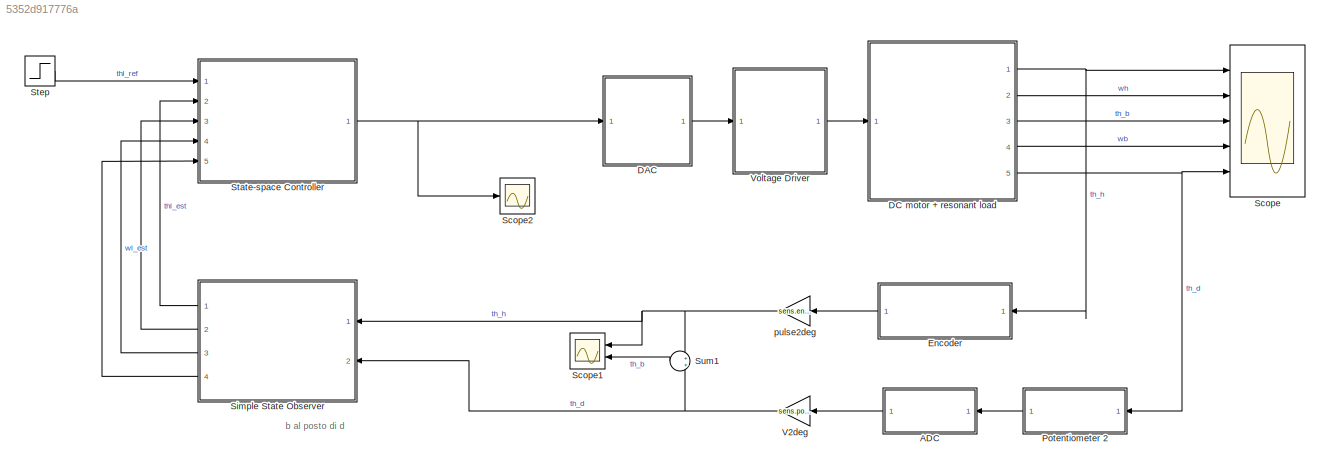
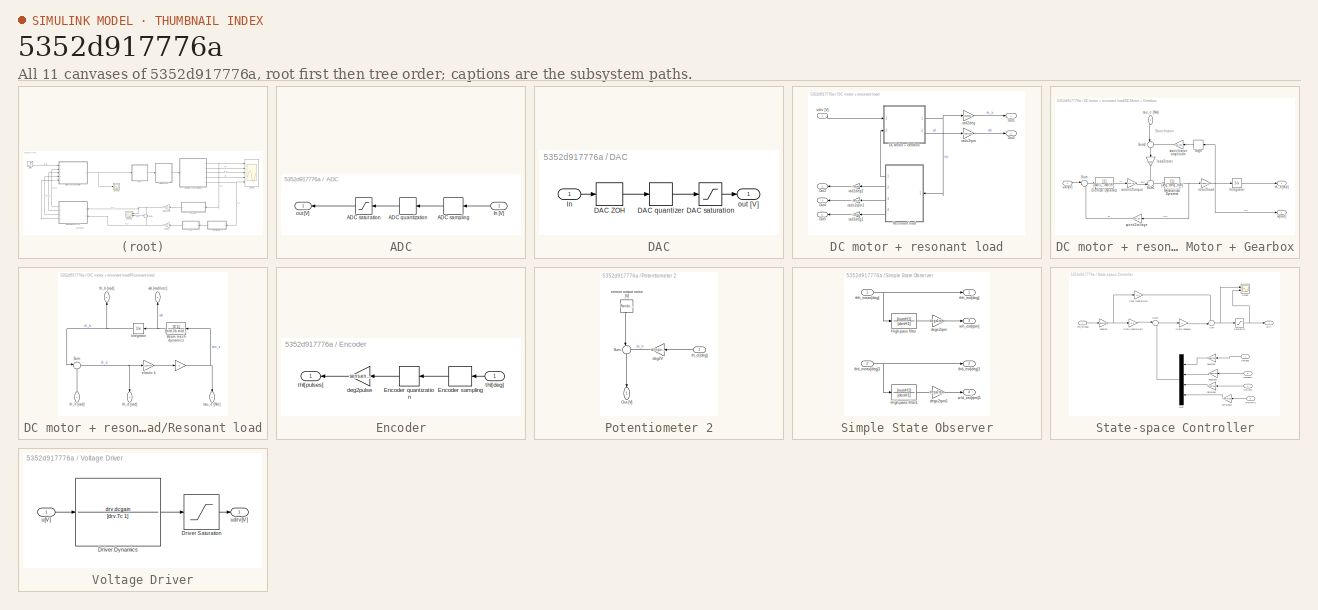
[diagram: thumbnail index - all 11 canvases of the model, root first then tree order]
MODEL slx_5352d917776a
KIND model
CONFIG AbsTol = auto
CONFIG EnableMultiTasking = off
CONFIG FixedStep = auto
CONFIG MaxStep = auto
CONFIG MinStep = auto
CONFIG RelTol = 1e-3
CONFIG SampleTimeConstraint = Unconstrained
CONFIG SolverName = ode45
CONFIG StartTime = 0.0
CONFIG StopTime = 5
BLOCK [SubSystem] ADC
  Ports = [1, 1]
  RequestExecContextInheritance = off
BLOCK [Quantizer] ADC/ADC quantization
  QuantizationInterval = daq.dac.q
BLOCK [ZeroOrderHold] ADC/ADC sampling
  SampleTime = 0.001
BLOCK [Saturate] ADC/ADC saturation
  LowerLimit = -daq.dac.fs
  UpperLimit = daq.dac.fs
BLOCK [Inport] ADC/In [V]
BLOCK [Outport] ADC/out [V]
BLOCK [SubSystem] DAC
  Ports = [1, 1]
  RequestExecContextInheritance = off
BLOCK [ZeroOrderHold] DAC/DAC ZOH
  SampleTime = 0.001
BLOCK [Quantizer] DAC/DAC quantizer
  QuantizationInterval = daq.dac.q
BLOCK [Saturate] DAC/DAC saturation
  LowerLimit = -daq.dac.fs
  UpperLimit = daq.dac.fs
BLOCK [Inport] DAC/In
BLOCK [Outport] DAC/out [V]
BLOCK [SubSystem] DC motor + resonant load
  Ports = [1, 5]
  RequestExecContextInheritance = off
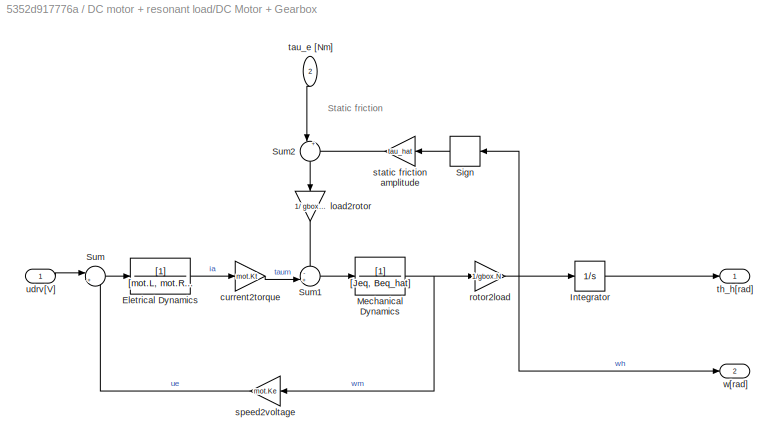
BLOCK [SubSystem] DC motor + resonant load/DC Motor + Gearbox
  Ports = [2, 2]
  RequestExecContextInheritance = off
BLOCK [TransferFcn] DC motor + resonant load/DC Motor + Gearbox/Eletrical Dynamics
  Denominator = [mot.L, mot.R+sens.curr.Rs]
BLOCK [Integrator] DC motor + resonant load/DC Motor + Gearbox/Integrator
  Ports = [1, 1]
BLOCK [TransferFcn] DC motor + resonant load/DC Motor + Gearbox/Mechanical Dynamics
  Denominator = [Jeq, Beq_hat]
BLOCK [Signum] DC motor + resonant load/DC Motor + Gearbox/Sign
  ZeroCross = off
BLOCK [Sum] DC motor + resonant load/DC Motor + Gearbox/Sum
  Inputs = |+-
  Ports = [2, 1]
BLOCK [Sum] DC motor + resonant load/DC Motor + Gearbox/Sum1
  Inputs = -+|
  Ports = [2, 1]
BLOCK [Sum] DC motor + resonant load/DC Motor + Gearbox/Sum2
  Inputs = |++
  NameLocation = right
  Ports = [2, 1]
BLOCK [Gain] DC motor + resonant load/DC Motor + Gearbox/current2torque
  Gain = mot.Kt
BLOCK [Gain] DC motor + resonant load/DC Motor + Gearbox/load2rotor
  Gain = 1/ gbox.N
  NameLocation = left
BLOCK [Gain] DC motor + resonant load/DC Motor + Gearbox/rotor2load
  Gain = 1/gbox.N
BLOCK [Gain] DC motor + resonant load/DC Motor + Gearbox/speed2voltage
  Gain = mot.Ke
BLOCK [Gain] DC motor + resonant load/DC Motor + Gearbox/static friction amplitude
  Gain = tau_hat
BLOCK [Inport] DC motor + resonant load/DC Motor + Gearbox/tau_e [Nm]
  NameLocation = left
  Port = 2
BLOCK [Outport] DC motor + resonant load/DC Motor + Gearbox/th_h[rad]
  VectorParamsAs1DForOutWhenUnconnected = off
BLOCK [Inport] DC motor + resonant load/DC Motor + Gearbox/udrv[V]
BLOCK [Outport] DC motor + resonant load/DC Motor + Gearbox/w[rad]
  Port = 2
  VectorParamsAs1DForOutWhenUnconnected = off
BLOCK [Outport] DC motor + resonant load/Out1
BLOCK [Outport] DC motor + resonant load/Out2
  Port = 2
BLOCK [Outport] DC motor + resonant load/Out3
  Port = 3
BLOCK [Outport] DC motor + resonant load/Out4
  Port = 4
BLOCK [Outport] DC motor + resonant load/Out5
  Port = 5
BLOCK [SubSystem] DC motor + resonant load/Resonant load
  Ports = [1, 4]
  RequestExecContextInheritance = off
BLOCK [Gain] DC motor + resonant load/Resonant load/.
  Gain = -1
BLOCK [TransferFcn] DC motor + resonant load/Resonant load/Beam mech dynamics
  Denominator = [mld.Jb mld.Bb]
  Numerator = [0 1]
BLOCK [Integrator] DC motor + resonant load/Resonant load/Integrator
  Ports = [1, 1]
BLOCK [Sum] DC motor + resonant load/Resonant load/Sum
  Inputs = |+-
  NameLocation = top
  Ports = [2, 1]
BLOCK [Gain] DC motor + resonant load/Resonant load/elastic k
  Gain = k_spring
BLOCK [Outport] DC motor + resonant load/Resonant load/tau_e [Nm]
  NameLocation = left
BLOCK [Outport] DC motor + resonant load/Resonant load/th_b [rad]
  NameLocation = right
  Port = 2
BLOCK [Outport] DC motor + resonant load/Resonant load/th_d [rad]
  NameLocation = left
  Port = 4
BLOCK [Inport] DC motor + resonant load/Resonant load/th_h [rad]
  NameLocation = right
BLOCK [Outport] DC motor + resonant load/Resonant load/wb [rad//sec]
  NameLocation = right
  Port = 3
BLOCK [Gain] DC motor + resonant load/rad2deg
  Gain = rad2deg
BLOCK [Gain] DC motor + resonant load/rad2deg1
  Gain = rad2deg
BLOCK [Gain] DC motor + resonant load/rad2deg2
  Gain = rad2deg
BLOCK [Gain] DC motor + resonant load/rads2rpm 
  Gain = rads2rpm
BLOCK [Gain] DC motor + resonant load/rads2rpm1 
  Gain = rads2rpm
BLOCK [Inport] DC motor + resonant load/udrv [V]
BLOCK [SubSystem] Encoder
  Ports = [1, 1]
  RequestExecContextInheritance = off
BLOCK [Quantizer] Encoder/Encoder quantization
  QuantizationInterval = sens.enc.pulse2deg
BLOCK [ZeroOrderHold] Encoder/Encoder sampling
  SampleTime = -1
BLOCK [Gain] Encoder/deg2pulse
  Gain = sens.enc.deg2pulse
BLOCK [Inport] Encoder/thl[deg]
BLOCK [Outport] Encoder/thl[pulses]
BLOCK [SubSystem] Potentiometer 2
  Ports = [1, 1]
  RequestExecContextInheritance = off
BLOCK [Outport] Potentiometer 2/Out [V]
  NameLocation = right
BLOCK [Sum] Potentiometer 2/Sum
  Inputs = |++
  NameLocation = left
  Ports = [2, 1]
BLOCK [Gain] Potentiometer 2/deg2V
  Gain = sens.pot2.deg2V
BLOCK [RandomNumber] Potentiometer 2/sensor output noise [V] 
  NameLocation = right
  SampleTime = 0.1
  Variance = 3.5e-7
BLOCK [Inport] Potentiometer 2/th_d [deg]
BLOCK [Scope] Scope
  Floating = off
  NumInputPorts = 5
  Ports = [5]
  ScopeSpecificationString = Simulink.scopes.TimeScopeBlockCfg('CurrentConfiguration', extmgr.ConfigurationSet(extmgr.Configuration('Core','General UI',true),extmgr.Configuration('Core','Source UI',true),extmgr.Configuration('Sources','WiredSimulink',true,'DataLoggingVariableName','MotorData','DataLogging',true,'DataLoggingSaveFormat','StructureWithTime'),extmgr.Configuration('Visuals','Time Domain',true,'SerializedDisplays',...<+4798ch>
BLOCK [Scope] Scope1
  Floating = off
  NumInputPorts = 2
  Ports = [2]
  ScopeSpecificationString = Simulink.scopes.TimeScopeBlockCfg('CurrentConfiguration', extmgr.ConfigurationSet(extmgr.Configuration('Core','General UI',true),extmgr.Configuration('Core','Source UI',true),extmgr.Configuration('Sources','WiredSimulink',true),extmgr.Configuration('Visuals','Time Domain',true,'SerializedDisplays',{struct('MinYLimReal','-2.92139','MaxYLimReal','24.83989','YLabelReal','','MinYLimMag','0.00000','Max...<+1335ch>
BLOCK [Scope] Scope2
  Floating = off
  NumInputPorts = 1
  Ports = [1]
  ScopeSpecificationString = Simulink.scopes.TimeScopeBlockCfg('CurrentConfiguration', extmgr.ConfigurationSet(extmgr.Configuration('Core','General UI',true),extmgr.Configuration('Core','Source UI',true),extmgr.Configuration('Sources','WiredSimulink',true,'DataLoggingVariableName','ScopeData1'),extmgr.Configuration('Visuals','Time Domain',true,'SerializedDisplays',{struct('MinYLimReal','-0.41633','MaxYLimReal','1.64636','YLab...<+1406ch>
BLOCK [SubSystem] Simple State Observer
  Ports = [2, 4]
  RequestExecContextInheritance = off
BLOCK [TransferFcn] Simple State Observer/High-pass filter
  Denominator = [denH1]
  Numerator = [numH1]
BLOCK [TransferFcn] Simple State Observer/High-pass filter1
  Denominator = [denH1]
  Numerator = [numH1]
BLOCK [Gain] Simple State Observer/degs2rpm
  Gain = degs2rpm
BLOCK [Gain] Simple State Observer/degs2rpm1
  Gain = degs2rpm
BLOCK [Outport] Simple State Observer/thd_est[deg]1
  Port = 2
BLOCK [Inport] Simple State Observer/thd_meas[deg]1
  Port = 2
BLOCK [Outport] Simple State Observer/thh_est[deg]
BLOCK [Inport] Simple State Observer/thh_meas[deg]
BLOCK [Outport] Simple State Observer/wh_est[rpm]
  Port = 3
BLOCK [Outport] Simple State Observer/wld_est[rpm]1
  Port = 4
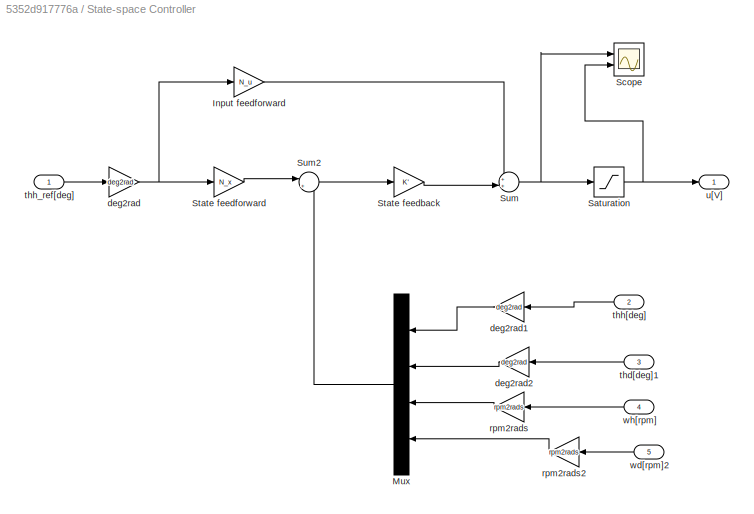
BLOCK [SubSystem] State-space Controller
  Ports = [5, 1]
  RequestExecContextInheritance = off
BLOCK [Gain] State-space Controller/Input feedforward
  Gain = N_u
BLOCK [Mux] State-space Controller/Mux
  DisplayOption = bar
  Ports = [4, 1]
BLOCK [Saturate] State-space Controller/Saturation
  LowerLimit = -10
  UpperLimit = 10
BLOCK [Scope] State-space Controller/Scope
  Floating = off
  NumInputPorts = 2
  Ports = [2]
  ScopeSpecificationString = Simulink.scopes.TimeScopeBlockCfg('CurrentConfiguration', extmgr.ConfigurationSet(extmgr.Configuration('Core','General UI',true),extmgr.Configuration('Core','Source UI',true),extmgr.Configuration('Sources','WiredSimulink',true,'DataLoggingVariableName','ScopeData2'),extmgr.Configuration('Visuals','Time Domain',true,'SerializedDisplays',{struct('MinYLimReal','-11.1537','MaxYLimReal','38.75094','YLa...<+1379ch>
BLOCK [Gain] State-space Controller/State feedback
  Gain = K'
  Multiplication = Matrix(u*K)
BLOCK [Gain] State-space Controller/State feedforward	
  Gain = N_x
  Multiplication = Matrix(u*K)
BLOCK [Sum] State-space Controller/Sum
  Inputs = ++|
  Ports = [2, 1]
BLOCK [Sum] State-space Controller/Sum2
  Inputs = |+-
  Ports = [2, 1]
BLOCK [Gain] State-space Controller/deg2rad
  Gain = deg2rad
BLOCK [Gain] State-space Controller/deg2rad1
  Gain = deg2rad
  NameLocation = top
BLOCK [Gain] State-space Controller/deg2rad2
  Gain = deg2rad
  NameLocation = top
BLOCK [Gain] State-space Controller/rpm2rads
  Gain = rpm2rads
BLOCK [Gain] State-space Controller/rpm2rads2
  Gain = rpm2rads
  NameLocation = top
BLOCK [Inport] State-space Controller/thd[deg]1
  Port = 3
BLOCK [Inport] State-space Controller/thh[deg]
  Port = 2
BLOCK [Inport] State-space Controller/thh_ref[deg]
BLOCK [Outport] State-space Controller/u[V]
BLOCK [Inport] State-space Controller/wd[rpm]2
  Port = 5
BLOCK [Inport] State-space Controller/wh[rpm]
  Port = 4
BLOCK [Step] Step
  After = step_size
  SampleTime = 0
BLOCK [Sum] Sum1
  NameLocation = top
  Ports = [2, 1]
BLOCK [Gain] V2deg
  Gain = sens.pot2.V2deg
BLOCK [SubSystem] Voltage Driver
  Ports = [1, 1]
  RequestExecContextInheritance = off
BLOCK [TransferFcn] Voltage Driver/Driver Dynamics
  Denominator = [drv.Tc 1]
  Numerator = drv.dcgain
BLOCK [Saturate] Voltage Driver/Driver Saturation
  LowerLimit = -12
  UpperLimit = 12
BLOCK [Inport] Voltage Driver/u[V]
BLOCK [Outport] Voltage Driver/udrv[V]
BLOCK [Gain] pulse2deg
  Gain = sens.enc.pulse2deg
ANNOTATION (root): b al posto di d
ANNOTATION DC motor + resonant load/DC Motor + Gearbox: Static friction
LINE ADC/ADC quantization:1 -> ADC/ADC saturation:1
LINE ADC/ADC sampling:1 -> ADC/ADC quantization:1
LINE ADC/ADC saturation:1 -> ADC/out [V]:1
LINE ADC/In [V]:1 -> ADC/ADC sampling:1
LINE ADC:1 -> V2deg:1
LINE DAC/DAC ZOH:1 -> DAC/DAC quantizer:1
LINE DAC/DAC quantizer:1 -> DAC/DAC saturation:1
LINE DAC/DAC saturation:1 -> DAC/out [V]:1
LINE DAC/In:1 -> DAC/DAC ZOH:1
LINE DAC:1 -> Voltage Driver:1
LINE DC motor + resonant load/DC Motor + Gearbox/Eletrical Dynamics:1 -> DC motor + resonant load/DC Motor + Gearbox/current2torque:1
LINE DC motor + resonant load/DC Motor + Gearbox/Integrator:1 -> DC motor + resonant load/DC Motor + Gearbox/th_h[rad]:1
NET DC motor + resonant load/DC Motor + Gearbox/Mechanical Dynamics:1 -> DC motor + resonant load/DC Motor + Gearbox/rotor2load:1, DC motor + resonant load/DC Motor + Gearbox/speed2voltage:1
LINE DC motor + resonant load/DC Motor + Gearbox/Sign:1 -> DC motor + resonant load/DC Motor + Gearbox/static friction amplitude:1
LINE DC motor + resonant load/DC Motor + Gearbox/Sum1:1 -> DC motor + resonant load/DC Motor + Gearbox/Mechanical Dynamics:1
LINE DC motor + resonant load/DC Motor + Gearbox/Sum2:1 -> DC motor + resonant load/DC Motor + Gearbox/load2rotor:1
LINE DC motor + resonant load/DC Motor + Gearbox/Sum:1 -> DC motor + resonant load/DC Motor + Gearbox/Eletrical Dynamics:1
LINE DC motor + resonant load/DC Motor + Gearbox/current2torque:1 -> DC motor + resonant load/DC Motor + Gearbox/Sum1:2
LINE DC motor + resonant load/DC Motor + Gearbox/load2rotor:1 -> DC motor + resonant load/DC Motor + Gearbox/Sum1:1
NET DC motor + resonant load/DC Motor + Gearbox/rotor2load:1 -> DC motor + resonant load/DC Motor + Gearbox/Integrator:1, DC motor + resonant load/DC Motor + Gearbox/Sign:1, DC motor + resonant load/DC Motor + Gearbox/w[rad]:1
LINE DC motor + resonant load/DC Motor + Gearbox/speed2voltage:1 -> DC motor + resonant load/DC Motor + Gearbox/Sum:2
LINE DC motor + resonant load/DC Motor + Gearbox/static friction amplitude:1 -> DC motor + resonant load/DC Motor + Gearbox/Sum2:2
LINE DC motor + resonant load/DC Motor + Gearbox/tau_e [Nm]:1 -> DC motor + resonant load/DC Motor + Gearbox/Sum2:1
LINE DC motor + resonant load/DC Motor + Gearbox/udrv[V]:1 -> DC motor + resonant load/DC Motor + Gearbox/Sum:1
NET DC motor + resonant load/DC Motor + Gearbox:1 -> DC motor + resonant load/Resonant load:1, DC motor + resonant load/rad2deg:1
LINE DC motor + resonant load/DC Motor + Gearbox:2 -> DC motor + resonant load/rads2rpm :1
NET DC motor + resonant load/Resonant load/.:1 -> DC motor + resonant load/Resonant load/Beam mech dynamics:1, DC motor + resonant load/Resonant load/tau_e [Nm]:1
NET DC motor + resonant load/Resonant load/Beam mech dynamics:1 -> DC motor + resonant load/Resonant load/Integrator:1, DC motor + resonant load/Resonant load/wb [rad//sec]:1
NET DC motor + resonant load/Resonant load/Integrator:1 -> DC motor + resonant load/Resonant load/Sum:1, DC motor + resonant load/Resonant load/th_b [rad]:1
NET DC motor + resonant load/Resonant load/Sum:1 -> DC motor + resonant load/Resonant load/elastic k:1, DC motor + resonant load/Resonant load/th_d [rad]:1
LINE DC motor + resonant load/Resonant load/elastic k:1 -> DC motor + resonant load/Resonant load/.:1
LINE DC motor + resonant load/Resonant load/th_h [rad]:1 -> DC motor + resonant load/Resonant load/Sum:2
LINE DC motor + resonant load/Resonant load:1 -> DC motor + resonant load/DC Motor + Gearbox:2
LINE DC motor + resonant load/Resonant load:2 -> DC motor + resonant load/rad2deg2:1
LINE DC motor + resonant load/Resonant load:3 -> DC motor + resonant load/rads2rpm1 :1
LINE DC motor + resonant load/Resonant load:4 -> DC motor + resonant load/rad2deg1:1
LINE DC motor + resonant load/rad2deg1:1 -> DC motor + resonant load/Out5:1
LINE DC motor + resonant load/rad2deg2:1 -> DC motor + resonant load/Out3:1
LINE DC motor + resonant load/rad2deg:1 -> DC motor + resonant load/Out1:1
LINE DC motor + resonant load/rads2rpm :1 -> DC motor + resonant load/Out2:1
LINE DC motor + resonant load/rads2rpm1 :1 -> DC motor + resonant load/Out4:1
LINE DC motor + resonant load/udrv [V]:1 -> DC motor + resonant load/DC Motor + Gearbox:1
NET DC motor + resonant load:1 -> Encoder:1, Scope:1
LINE DC motor + resonant load:2 -> Scope:2
LINE DC motor + resonant load:3 -> Scope:3
LINE DC motor + resonant load:4 -> Scope:4
NET DC motor + resonant load:5 -> Potentiometer 2:1, Scope:5
LINE Encoder/Encoder quantization:1 -> Encoder/deg2pulse:1
LINE Encoder/Encoder sampling:1 -> Encoder/Encoder quantization:1
LINE Encoder/deg2pulse:1 -> Encoder/thl[pulses]:1
LINE Encoder/thl[deg]:1 -> Encoder/Encoder sampling:1
LINE Encoder:1 -> pulse2deg:1
LINE Potentiometer 2/Sum:1 -> Potentiometer 2/Out [V]:1
LINE Potentiometer 2/deg2V:1 -> Potentiometer 2/Sum:2
LINE Potentiometer 2/sensor output noise [V] :1 -> Potentiometer 2/Sum:1
LINE Potentiometer 2/th_d [deg]:1 -> Potentiometer 2/deg2V:1
LINE Potentiometer 2:1 -> ADC:1
LINE Simple State Observer/High-pass filter1:1 -> Simple State Observer/degs2rpm1:1
LINE Simple State Observer/High-pass filter:1 -> Simple State Observer/degs2rpm:1
LINE Simple State Observer/degs2rpm1:1 -> Simple State Observer/wld_est[rpm]1:1
LINE Simple State Observer/degs2rpm:1 -> Simple State Observer/wh_est[rpm]:1
NET Simple State Observer/thd_meas[deg]1:1 -> Simple State Observer/High-pass filter1:1, Simple State Observer/thd_est[deg]1:1
NET Simple State Observer/thh_meas[deg]:1 -> Simple State Observer/High-pass filter:1, Simple State Observer/thh_est[deg]:1
LINE Simple State Observer:1 -> State-space Controller:2
LINE Simple State Observer:2 -> State-space Controller:3
LINE Simple State Observer:3 -> State-space Controller:4
LINE Simple State Observer:4 -> State-space Controller:5
LINE State-space Controller/Input feedforward:1 -> State-space Controller/Sum:1
LINE State-space Controller/Mux:1 -> State-space Controller/Sum2:2
NET State-space Controller/Saturation:1 -> State-space Controller/Scope:2, State-space Controller/u[V]:1
LINE State-space Controller/State feedback:1 -> State-space Controller/Sum:2
LINE State-space Controller/State feedforward	:1 -> State-space Controller/Sum2:1
LINE State-space Controller/Sum2:1 -> State-space Controller/State feedback:1
NET State-space Controller/Sum:1 -> State-space Controller/Saturation:1, State-space Controller/Scope:1
LINE State-space Controller/deg2rad1:1 -> State-space Controller/Mux:1
LINE State-space Controller/deg2rad2:1 -> State-space Controller/Mux:2
NET State-space Controller/deg2rad:1 -> State-space Controller/Input feedforward:1, State-space Controller/State feedforward	:1
LINE State-space Controller/rpm2rads2:1 -> State-space Controller/Mux:4
LINE State-space Controller/rpm2rads:1 -> State-space Controller/Mux:3
LINE State-space Controller/thd[deg]1:1 -> State-space Controller/deg2rad2:1
LINE State-space Controller/thh[deg]:1 -> State-space Controller/deg2rad1:1
LINE State-space Controller/thh_ref[deg]:1 -> State-space Controller/deg2rad:1
LINE State-space Controller/wd[rpm]2:1 -> State-space Controller/rpm2rads2:1
LINE State-space Controller/wh[rpm]:1 -> State-space Controller/rpm2rads:1
NET State-space Controller:1 -> DAC:1, Scope2:1
LINE Step:1 -> State-space Controller:1
LINE Sum1:1 -> Scope1:2
NET V2deg:1 -> Simple State Observer:2, Sum1:2
LINE Voltage Driver/Driver Dynamics:1 -> Voltage Driver/Driver Saturation:1
LINE Voltage Driver/Driver Saturation:1 -> Voltage Driver/udrv[V]:1
LINE Voltage Driver/u[V]:1 -> Voltage Driver/Driver Dynamics:1
LINE Voltage Driver:1 -> DC motor + resonant load:1
NET pulse2deg:1 -> Scope1:1, Simple State Observer:1, Sum1:1
note: NET lines group one-source signal fan-out (src -> all destinations, sorted); 1:1 wires keep LINE
